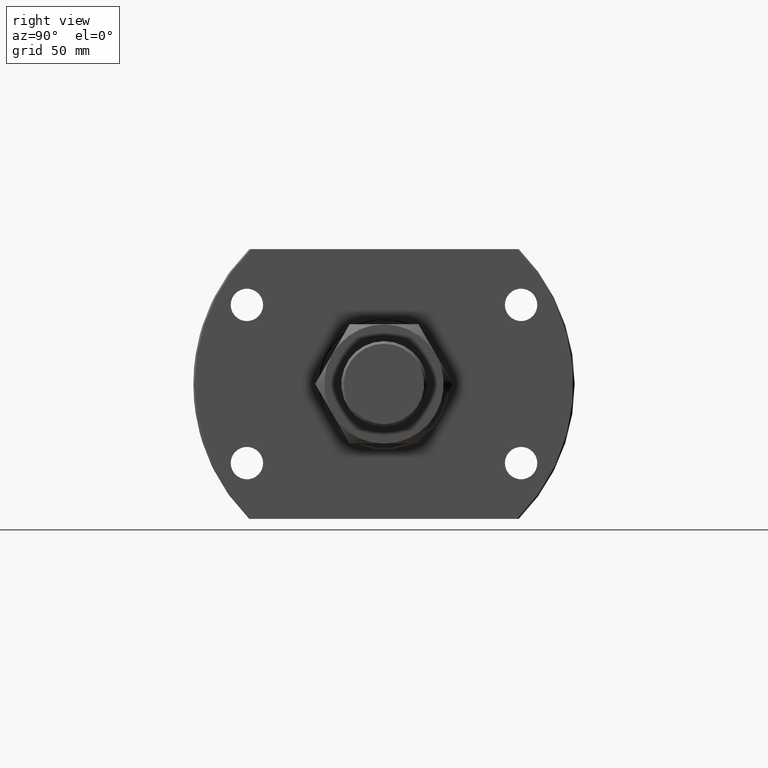
[diagram: clean part render]
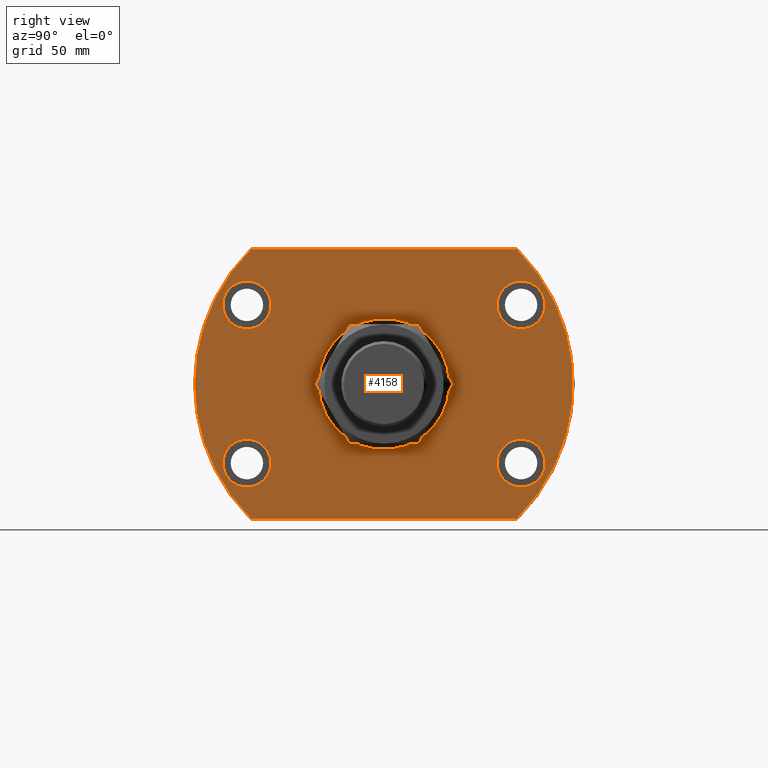
[diagram: same view with one face highlighted and labeled with its STEP entity id]
A machine part, right view. The second image highlights one B-rep face of the part: STEP entity #4158.
In plain terms, the highlighted planar face has unit normal (-1, -0, 0).
Its self-contained STEP definition (entity closure, byte-faithful):
#38 = CARTESIAN_POINT ( 'NONE',  ( 44.50000000000152056, 52.84999999999871534, 30.50000000000000000 ) ) ;
#65 = EDGE_LOOP ( 'NONE', ( #3169, #4201 ) ) ;
#137 = DIRECTION ( 'NONE',  ( 0.000000000000000000, -1.000000000000000000, 0.000000000000000000 ) ) ;
#165 = CARTESIAN_POINT ( 'NONE',  ( 44.49999999999999289, 2.449293598294705330E-15, 0.000000000000000000 ) ) ;
#273 = CARTESIAN_POINT ( 'NONE',  ( 44.49999999999999289, 25.24999999999726441, 0.000000000000000000 ) ) ;
#338 = FACE_BOUND ( 'NONE', #3741, .T. ) ;
#362 = DIRECTION ( 'NONE',  ( 1.000000000000000000, -2.888547605177540648E-14, 0.000000000000000000 ) ) ;
#494 = DIRECTION ( 'NONE',  ( 1.000000000000000000, -2.888547605177540648E-14, 0.000000000000000000 ) ) ;
#498 = LINE ( 'NONE', #1289, #4895 ) ;
#516 = DIRECTION ( 'NONE',  ( -1.000000000000000000, -5.504030557965630938E-17, 0.000000000000000000 ) ) ;
#534 = DIRECTION ( 'NONE',  ( 2.925587700025750053E-14, 1.000000000000000000, 0.000000000000000000 ) ) ;
#554 = EDGE_CURVE ( 'NONE', #971, #779, #4653, .T. ) ;
#617 = EDGE_CURVE ( 'NONE', #1237, #4870, #3227, .T. ) ;
#779 = VERTEX_POINT ( 'NONE', #3122 ) ;
#814 = CARTESIAN_POINT ( 'NONE',  ( 44.49999999999819522, -62.10000000000128750, -30.50000000000000000 ) ) ;
#855 = ORIENTED_EDGE ( 'NONE', *, *, #2430, .T. ) ;
#864 = ORIENTED_EDGE ( 'NONE', *, *, #2368, .F. ) ;
#876 = CIRCLE ( 'NONE', #4109, 9.250000000000001776 ) ;
#887 = EDGE_CURVE ( 'NONE', #2713, #2592, #4888, .T. ) ;
#902 = DIRECTION ( 'NONE',  ( 1.000000000000000000, -2.886466111666351885E-14, 0.000000000000000000 ) ) ;
#909 = ORIENTED_EDGE ( 'NONE', *, *, #3480, .T. ) ;
#971 = VERTEX_POINT ( 'NONE', #2100 ) ;
#1065 = DIRECTION ( 'NONE',  ( 1.000000000000000000, -2.888547605177540648E-14, 0.000000000000000000 ) ) ;
#1080 = AXIS2_PLACEMENT_3D ( 'NONE', #2387, #3905, #137 ) ;
#1107 = DIRECTION ( 'NONE',  ( -1.000000000000000000, -5.504030557965630938E-17, 0.000000000000000000 ) ) ;
#1109 = ORIENTED_EDGE ( 'NONE', *, *, #2765, .F. ) ;
#1142 = ORIENTED_EDGE ( 'NONE', *, *, #2823, .T. ) ;
#1155 = VERTEX_POINT ( 'NONE', #2169 ) ;
#1157 = FACE_BOUND ( 'NONE', #2692, .T. ) ;
#1235 = VERTEX_POINT ( 'NONE', #814 ) ;
#1237 = VERTEX_POINT ( 'NONE', #1586 ) ;
#1267 = CIRCLE ( 'NONE', #2600, 9.250000000000001776 ) ;
#1287 = DIRECTION ( 'NONE',  ( -9.505334114941407284E-17, 1.000000000000000000, 0.000000000000000000 ) ) ;
#1289 = CARTESIAN_POINT ( 'NONE',  ( 44.49999999999999289, 51.94468211472779728, 52.00000000000000000 ) ) ;
#1306 = DIRECTION ( 'NONE',  ( 1.000000000000000000, -2.888547605177540648E-14, 0.000000000000000000 ) ) ;
#1313 = CARTESIAN_POINT ( 'NONE',  ( 44.49999999999819522, -62.10000000000128750, 30.50000000000000000 ) ) ;
#1349 = DIRECTION ( 'NONE',  ( 2.925587700025750053E-14, 1.000000000000000000, 0.000000000000000000 ) ) ;
#1354 = CARTESIAN_POINT ( 'NONE',  ( 44.49999999999846523, -52.85000000000128750, -30.50000000000000000 ) ) ;
#1414 = CIRCLE ( 'NONE', #2199, 9.250000000000001776 ) ;
#1457 = AXIS2_PLACEMENT_3D ( 'NONE', #38, #4249, #2731 ) ;
#1492 = CARTESIAN_POINT ( 'NONE',  ( 44.49999999999998579, 51.23475382979800230, 52.00000000000000000 ) ) ;
#1512 = FACE_BOUND ( 'NONE', #65, .T. ) ;
#1528 = CARTESIAN_POINT ( 'NONE',  ( 44.49999999999999289, -51.23475382979801651, 52.00000000000000000 ) ) ;
#1541 = DIRECTION ( 'NONE',  ( 1.000000000000000000, 5.504030557965630938E-17, -0.000000000000000000 ) ) ;
#1581 = CARTESIAN_POINT ( 'NONE',  ( 44.50000000000000000, -73.00000000000001421, 0.000000000000000000 ) ) ;
#1586 = CARTESIAN_POINT ( 'NONE',  ( 44.49999999999999289, -25.25000000000129674, 3.092233167847068013E-15 ) ) ;
#1832 = CARTESIAN_POINT ( 'NONE',  ( 44.50000000000152056, 52.84999999999871534, -30.50000000000000000 ) ) ;
#1836 = EDGE_CURVE ( 'NONE', #4295, #4535, #3031, .T. ) ;
#1854 = CARTESIAN_POINT ( 'NONE',  ( 44.50000000000000000, -73.00000000000001421, -52.00000000000000000 ) ) ;
#1905 = CARTESIAN_POINT ( 'NONE',  ( 44.49999999999999289, 2.449293598294705330E-15, 0.000000000000000000 ) ) ;
#1925 = VERTEX_POINT ( 'NONE', #1492 ) ;
#1950 = VERTEX_POINT ( 'NONE', #2063 ) ;
#2059 = AXIS2_PLACEMENT_3D ( 'NONE', #165, #3138, #4649 ) ;
#2063 = CARTESIAN_POINT ( 'NONE',  ( 44.49999999999873523, -43.60000000000128040, -30.50000000000000000 ) ) ;
#2073 = CARTESIAN_POINT ( 'NONE',  ( 44.49999999999999289, -1.284477419691526336E-12, 0.000000000000000000 ) ) ;
#2100 = CARTESIAN_POINT ( 'NONE',  ( 44.50000000000125056, 43.59999999999871534, 30.50000000000000000 ) ) ;
#2132 = CIRCLE ( 'NONE', #3399, 25.24999999999855049 ) ;
#2151 = CARTESIAN_POINT ( 'NONE',  ( 44.50000000000179057, 62.09999999999871534, -30.50000000000000000 ) ) ;
#2169 = CARTESIAN_POINT ( 'NONE',  ( 44.50000000000124345, 43.59999999999871534, -30.50000000000000000 ) ) ;
#2199 = AXIS2_PLACEMENT_3D ( 'NONE', #1832, #2228, #4860 ) ;
#2228 = DIRECTION ( 'NONE',  ( 1.000000000000000000, -2.888547605177540648E-14, 0.000000000000000000 ) ) ;
#2361 = CARTESIAN_POINT ( 'NONE',  ( 44.49999999999998579, 51.23475382979800941, -52.00000000000000000 ) ) ;
#2368 = EDGE_CURVE ( 'NONE', #1235, #1950, #876, .T. ) ;
#2387 = CARTESIAN_POINT ( 'NONE',  ( 44.49999999999999289, -1.284477419691526336E-12, 0.000000000000000000 ) ) ;
#2390 = CARTESIAN_POINT ( 'NONE',  ( 44.49999999999846523, -52.85000000000128750, 30.50000000000000000 ) ) ;
#2394 = EDGE_CURVE ( 'NONE', #1950, #1235, #1267, .T. ) ;
#2396 = DIRECTION ( 'NONE',  ( 2.925587700025750053E-14, 1.000000000000000000, 0.000000000000000000 ) ) ;
#2430 = EDGE_CURVE ( 'NONE', #4870, #1237, #2132, .T. ) ;
#2454 = CIRCLE ( 'NONE', #2672, 9.250000000000001776 ) ;
#2568 = EDGE_LOOP ( 'NONE', ( #3759, #4195, #909, #3627, #1142 ) ) ;
#2592 = VERTEX_POINT ( 'NONE', #1581 ) ;
#2594 = CIRCLE ( 'NONE', #3714, 9.250000000000001776 ) ;
#2600 = AXIS2_PLACEMENT_3D ( 'NONE', #1354, #494, #4751 ) ;
#2616 = DIRECTION ( 'NONE',  ( 5.504030557965630938E-17, -1.000000000000000000, 0.000000000000000000 ) ) ;
#2638 = DIRECTION ( 'NONE',  ( 2.925587700025750053E-14, 1.000000000000000000, 0.000000000000000000 ) ) ;
#2665 = PLANE ( 'NONE',  #3433 ) ;
#2672 = AXIS2_PLACEMENT_3D ( 'NONE', #2390, #3932, #534 ) ;
#2692 = EDGE_LOOP ( 'NONE', ( #855, #3140 ) ) ;
#2697 = DIRECTION ( 'NONE',  ( -0.000000000000000000, 1.000000000000000000, 0.000000000000000000 ) ) ;
#2713 = VERTEX_POINT ( 'NONE', #1528 ) ;
#2718 = FACE_BOUND ( 'NONE', #4628, .T. ) ;
#2731 = DIRECTION ( 'NONE',  ( 2.850572630794320387E-14, 1.000000000000000000, 0.000000000000000000 ) ) ;
#2765 = EDGE_CURVE ( 'NONE', #3810, #3573, #2454, .T. ) ;
#2823 = EDGE_CURVE ( 'NONE', #4535, #1925, #4198, .T. ) ;
#2830 = DIRECTION ( 'NONE',  ( 2.850572630794320387E-14, 1.000000000000000000, 0.000000000000000000 ) ) ;
#2839 = CARTESIAN_POINT ( 'NONE',  ( 44.49999999999846523, -52.85000000000128750, -30.50000000000000000 ) ) ;
#2961 = CIRCLE ( 'NONE', #3520, 9.250000000000001776 ) ;
#2966 = EDGE_CURVE ( 'NONE', #1155, #3973, #2594, .T. ) ;
#3023 = FACE_BOUND ( 'NONE', #4276, .T. ) ;
#3031 = LINE ( 'NONE', #1854, #4504 ) ;
#3075 = EDGE_CURVE ( 'NONE', #3973, #1155, #1414, .T. ) ;
#3122 = CARTESIAN_POINT ( 'NONE',  ( 44.50000000000178346, 62.09999999999871534, 30.50000000000000000 ) ) ;
#3138 = DIRECTION ( 'NONE',  ( 1.000000000000000000, 5.504030557965630938E-17, -0.000000000000000000 ) ) ;
#3140 = ORIENTED_EDGE ( 'NONE', *, *, #617, .T. ) ;
#3165 = AXIS2_PLACEMENT_3D ( 'NONE', #1905, #1541, #4875 ) ;
#3169 = ORIENTED_EDGE ( 'NONE', *, *, #4520, .F. ) ;
#3227 = CIRCLE ( 'NONE', #1080, 25.24999999999855049 ) ;
#3282 = CARTESIAN_POINT ( 'NONE',  ( 44.49999999999999289, -51.23475382979800230, -52.00000000000000000 ) ) ;
#3338 = ORIENTED_EDGE ( 'NONE', *, *, #4182, .F. ) ;
#3399 = AXIS2_PLACEMENT_3D ( 'NONE', #2073, #516, #4354 ) ;
#3433 = AXIS2_PLACEMENT_3D ( 'NONE', #4187, #1107, #2616 ) ;
#3438 = CIRCLE ( 'NONE', #1457, 9.250000000000001776 ) ;
#3466 = AXIS2_PLACEMENT_3D ( 'NONE', #3493, #4610, #1287 ) ;
#3480 = EDGE_CURVE ( 'NONE', #2592, #4295, #4346, .T. ) ;
#3493 = CARTESIAN_POINT ( 'NONE',  ( 44.49999999999999289, 2.449293598294705330E-15, 0.000000000000000000 ) ) ;
#3520 = AXIS2_PLACEMENT_3D ( 'NONE', #3763, #362, #2638 ) ;
#3573 = VERTEX_POINT ( 'NONE', #4685 ) ;
#3576 = EDGE_CURVE ( 'NONE', #2713, #1925, #498, .T. ) ;
#3627 = ORIENTED_EDGE ( 'NONE', *, *, #1836, .T. ) ;
#3672 = ORIENTED_EDGE ( 'NONE', *, *, #3075, .F. ) ;
#3714 = AXIS2_PLACEMENT_3D ( 'NONE', #4463, #1065, #1349 ) ;
#3741 = EDGE_LOOP ( 'NONE', ( #4894, #864 ) ) ;
#3759 = ORIENTED_EDGE ( 'NONE', *, *, #3576, .F. ) ;
#3763 = CARTESIAN_POINT ( 'NONE',  ( 44.49999999999846523, -52.85000000000128750, 30.50000000000000000 ) ) ;
#3810 = VERTEX_POINT ( 'NONE', #1313 ) ;
#3905 = DIRECTION ( 'NONE',  ( -1.000000000000000000, -5.504030557965630938E-17, 0.000000000000000000 ) ) ;
#3932 = DIRECTION ( 'NONE',  ( 1.000000000000000000, -2.888547605177540648E-14, 0.000000000000000000 ) ) ;
#3973 = VERTEX_POINT ( 'NONE', #2151 ) ;
#4024 = AXIS2_PLACEMENT_3D ( 'NONE', #4298, #902, #2830 ) ;
#4109 = AXIS2_PLACEMENT_3D ( 'NONE', #2839, #1306, #2396 ) ;
#4158 = ADVANCED_FACE ( 'NONE', ( #1157, #1512, #2718, #338, #3023, #4506 ), #2665, .F. ) ;
#4169 = DIRECTION ( 'NONE',  ( -5.504030557965630938E-17, 1.000000000000000000, -0.000000000000000000 ) ) ;
#4182 = EDGE_CURVE ( 'NONE', #3573, #3810, #2961, .T. ) ;
#4187 = CARTESIAN_POINT ( 'NONE',  ( 44.50000000000000000, -73.00000000000001421, 0.000000000000000000 ) ) ;
#4195 = ORIENTED_EDGE ( 'NONE', *, *, #887, .T. ) ;
#4198 = CIRCLE ( 'NONE', #2059, 73.00000000000001421 ) ;
#4201 = ORIENTED_EDGE ( 'NONE', *, *, #554, .F. ) ;
#4249 = DIRECTION ( 'NONE',  ( 1.000000000000000000, -2.886466111666351885E-14, 0.000000000000000000 ) ) ;
#4276 = EDGE_LOOP ( 'NONE', ( #3672, #4774 ) ) ;
#4295 = VERTEX_POINT ( 'NONE', #3282 ) ;
#4298 = CARTESIAN_POINT ( 'NONE',  ( 44.50000000000152056, 52.84999999999871534, 30.50000000000000000 ) ) ;
#4346 = CIRCLE ( 'NONE', #3165, 73.00000000000001421 ) ;
#4354 = DIRECTION ( 'NONE',  ( 0.000000000000000000, -1.000000000000000000, 0.000000000000000000 ) ) ;
#4463 = CARTESIAN_POINT ( 'NONE',  ( 44.50000000000152056, 52.84999999999871534, -30.50000000000000000 ) ) ;
#4504 = VECTOR ( 'NONE', #4169, 1000.000000000000000 ) ;
#4506 = FACE_OUTER_BOUND ( 'NONE', #2568, .T. ) ;
#4520 = EDGE_CURVE ( 'NONE', #779, #971, #3438, .T. ) ;
#4535 = VERTEX_POINT ( 'NONE', #2361 ) ;
#4610 = DIRECTION ( 'NONE',  ( 1.000000000000000000, 5.504030557965630938E-17, -0.000000000000000000 ) ) ;
#4628 = EDGE_LOOP ( 'NONE', ( #3338, #1109 ) ) ;
#4649 = DIRECTION ( 'NONE',  ( -9.505334114941407284E-17, 1.000000000000000000, 0.000000000000000000 ) ) ;
#4653 = CIRCLE ( 'NONE', #4024, 9.250000000000001776 ) ;
#4685 = CARTESIAN_POINT ( 'NONE',  ( 44.49999999999873523, -43.60000000000128040, 30.50000000000000000 ) ) ;
#4751 = DIRECTION ( 'NONE',  ( 2.925587700025750053E-14, 1.000000000000000000, 0.000000000000000000 ) ) ;
#4774 = ORIENTED_EDGE ( 'NONE', *, *, #2966, .F. ) ;
#4860 = DIRECTION ( 'NONE',  ( 2.925587700025750053E-14, 1.000000000000000000, 0.000000000000000000 ) ) ;
#4870 = VERTEX_POINT ( 'NONE', #273 ) ;
#4875 = DIRECTION ( 'NONE',  ( -9.505334114941407284E-17, 1.000000000000000000, 0.000000000000000000 ) ) ;
#4888 = CIRCLE ( 'NONE', #3466, 73.00000000000001421 ) ;
#4894 = ORIENTED_EDGE ( 'NONE', *, *, #2394, .F. ) ;
#4895 = VECTOR ( 'NONE', #2697, 1000.000000000000000 ) ;